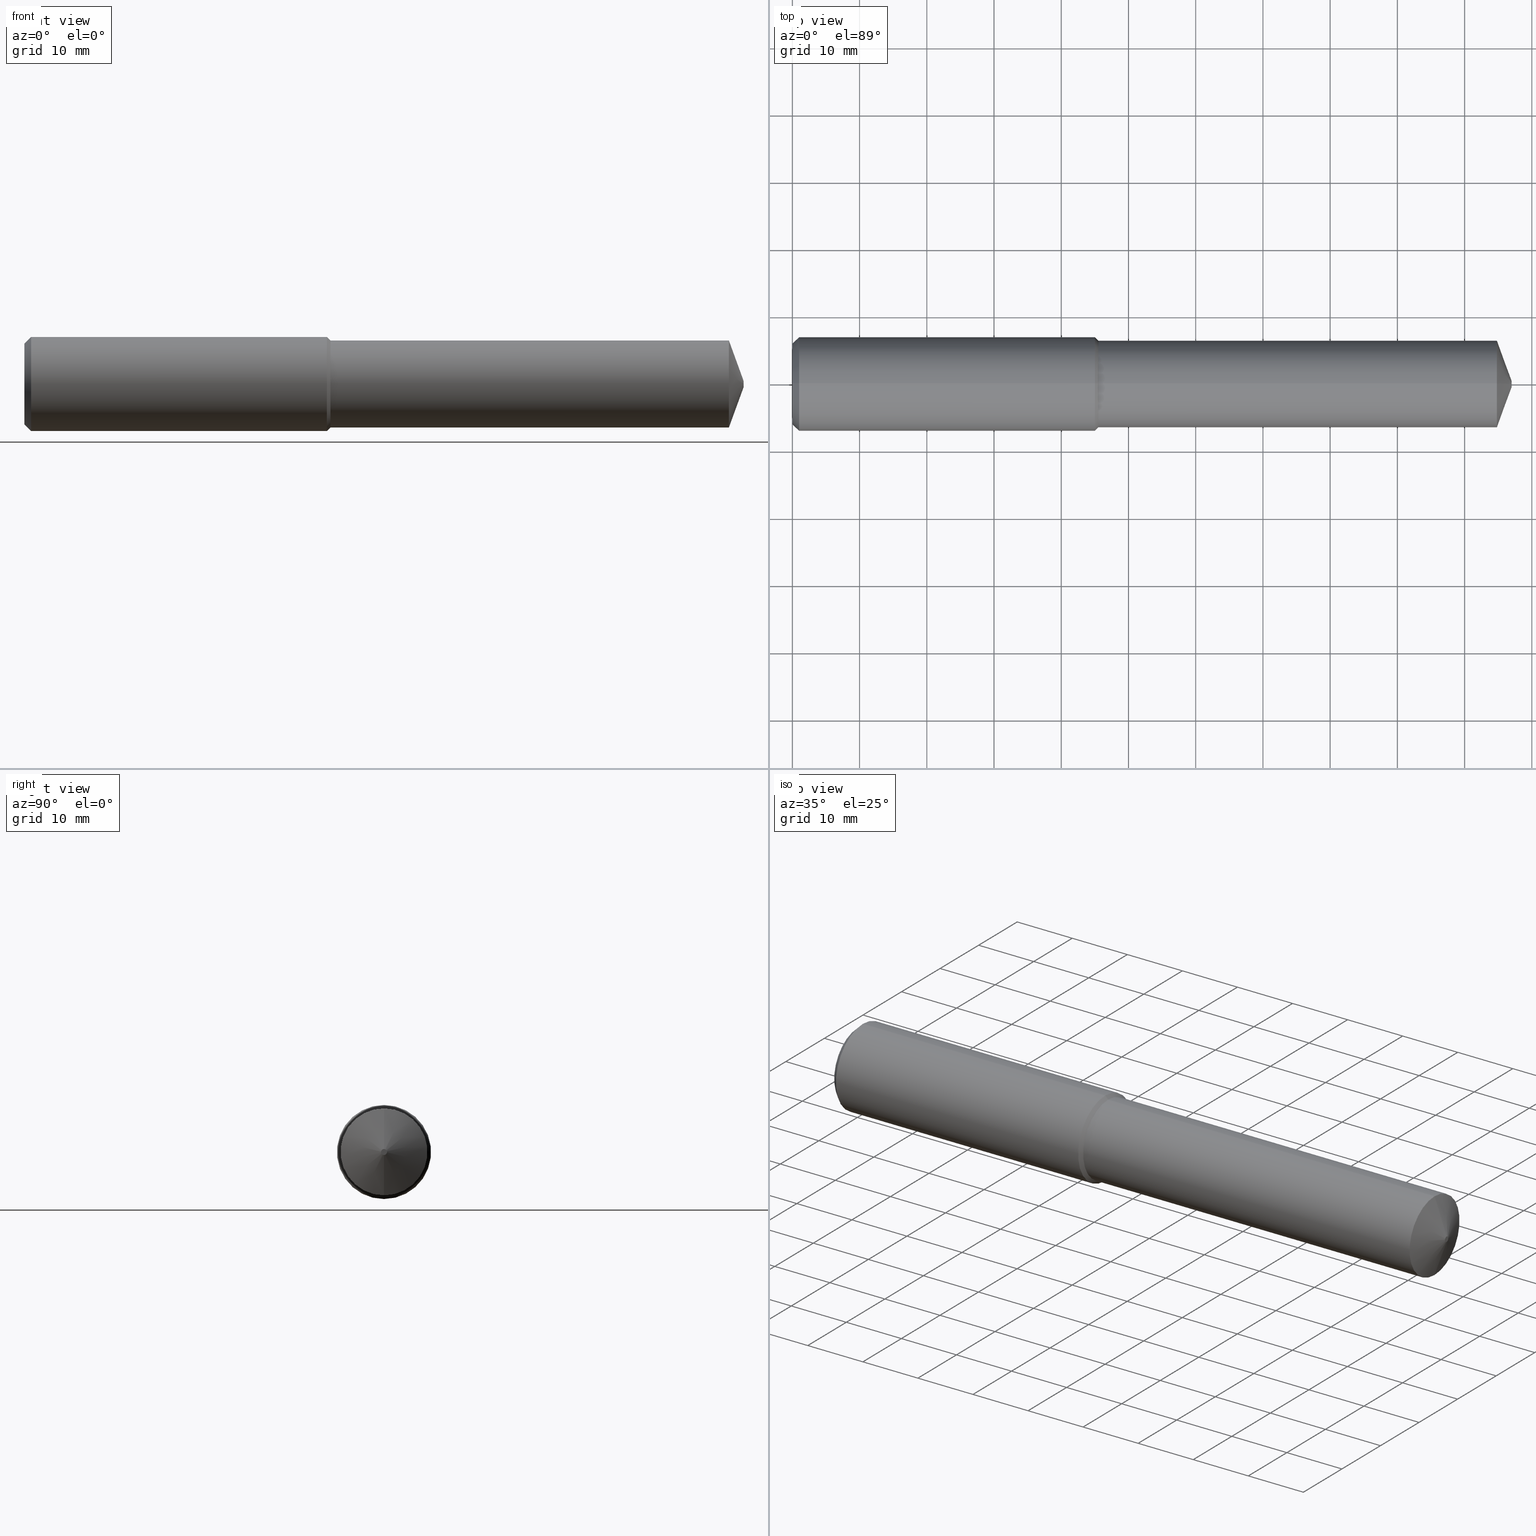
[diagram: canonical four-view strip — front | top / right | iso, engineering-drawing reading convention]
A machine part, canonical four-view strip (front | top / right | iso — engineering-drawing reading convention). The complete STEP part file that produces these views, byte-faithful:
ISO-10303-21;
HEADER;
FILE_DESCRIPTION (( 'STEP AP203' ),
    '1' );
FILE_NAME ('407008-DFX3-509A.STEP',
    '2024-10-02T21:42:54',
    ( '' ),
    ( '' ),
    'SwSTEP 2.0',
    'SolidWorks 2024',
    '' );
FILE_SCHEMA (( 'CONFIG_CONTROL_DESIGN' ));
ENDSEC;

DATA;
#1 = CARTESIAN_POINT ( 'NONE',  ( 4.126337479675760811, 0.000000000000000000, 0.000000000000000000 ) ) ;
#2 = DIRECTION ( 'NONE',  ( 0.000000000000000000, 0.000000000000000000, 1.000000000000000000 ) ) ;
#3 = AXIS2_PLACEMENT_3D ( 'NONE', #293, #116, #31 ) ;
#4 = AXIS2_PLACEMENT_3D ( 'NONE', #186, #93, #98 ) ;
#5 = DATE_AND_TIME ( #144, #322 ) ;
#6 = DIRECTION ( 'NONE',  ( 0.000000000000000000, 0.000000000000000000, -1.000000000000000000 ) ) ;
#7 = EDGE_CURVE ( 'NONE', #47, #162, #38, .T. ) ;
#8 = LINE ( 'NONE', #184, #338 ) ;
#9 = DIRECTION ( 'NONE',  ( 0.000000000000000000, 0.000000000000000000, -1.000000000000000000 ) ) ;
#10 = CC_DESIGN_APPROVAL ( #58, ( #148 ) ) ;
#11 = FACE_OUTER_BOUND ( 'NONE', #57, .T. ) ;
#12 = CARTESIAN_POINT ( 'NONE',  ( 4.212598425196850016, 0.000000000000000000, 0.01750000000000052208 ) ) ;
#13 = DIRECTION ( 'NONE',  ( 0.000000000000000000, 0.000000000000000000, 1.000000000000000000 ) ) ;
#14 = APPROVAL_DATE_TIME ( #218, #58 ) ;
#15 = AXIS2_PLACEMENT_3D ( 'NONE', #239, #288, #2 ) ;
#16 = ORIENTED_EDGE ( 'NONE', *, *, #73, .F. ) ;
#17 = EDGE_CURVE ( 'NONE', #131, #282, #147, .T. ) ;
#18 =( LENGTH_UNIT ( ) NAMED_UNIT ( * ) SI_UNIT ( $, .METRE. ) );
#19 = ORIENTED_EDGE ( 'NONE', *, *, #87, .T. ) ;
#20 = CARTESIAN_POINT ( 'NONE',  ( 1.771653543307086576, 3.375010863791921456E-17, -0.2755905511811025943 ) ) ;
#21 = EDGE_LOOP ( 'NONE', ( #28, #107, #77, #226 ) ) ;
#22 = CC_DESIGN_PERSON_AND_ORGANIZATION_ASSIGNMENT ( #310, #347, ( #103 ) ) ;
#23 = DIRECTION ( 'NONE',  ( 0.000000000000000000, 0.000000000000000000, 1.000000000000000000 ) ) ;
#24 = ORIENTED_EDGE ( 'NONE', *, *, #263, .T. ) ;
#25 = VECTOR ( 'NONE', #205, 39.37007874015748143 ) ;
#26 = ORIENTED_EDGE ( 'NONE', *, *, #321, .T. ) ;
#27 = COORDINATED_UNIVERSAL_TIME_OFFSET ( 8, 0, .BEHIND. ) ;
#28 = ORIENTED_EDGE ( 'NONE', *, *, #286, .F. ) ;
#29 = ADVANCED_FACE ( 'NONE', ( #86 ), #249, .T. ) ;
#30 = CARTESIAN_POINT ( 'NONE',  ( 1.771653543307086576, 0.000000000000000000, 0.000000000000000000 ) ) ;
#31 = DIRECTION ( 'NONE',  ( 0.000000000000000000, 0.000000000000000000, -1.000000000000000000 ) ) ;
#32 = FACE_OUTER_BOUND ( 'NONE', #74, .T. ) ;
#33 = FACE_OUTER_BOUND ( 'NONE', #191, .T. ) ;
#34 = CIRCLE ( 'NONE', #96, 0.01750000000000052208 ) ;
#35 = CARTESIAN_POINT ( 'NONE',  ( 1.792744094488189166, 0.000000000000000000, 0.2545000000000002260 ) ) ;
#36 = DIRECTION ( 'NONE',  ( -0.000000000000000000, 0.000000000000000000, -1.000000000000000000 ) ) ;
#37 = DIRECTION ( 'NONE',  ( 0.000000000000000000, 0.000000000000000000, -1.000000000000000000 ) ) ;
#38 = CIRCLE ( 'NONE', #167, 0.2362204724409449341 ) ;
#39 = CIRCLE ( 'NONE', #92, 0.2545000000000002260 ) ;
#40 = PLANE ( 'NONE',  #354 ) ;
#41 = EDGE_CURVE ( 'NONE', #162, #47, #267, .T. ) ;
#42 = CARTESIAN_POINT ( 'NONE',  ( 1.792744094488189166, 0.000000000000000000, 0.000000000000000000 ) ) ;
#43 = ADVANCED_FACE ( 'NONE', ( #121 ), #80, .T. ) ;
#44 = MECHANICAL_CONTEXT ( 'NONE', #213, 'mechanical' ) ;
#45 = PERSON_AND_ORGANIZATION_ROLE ( 'creator' ) ;
#46 = ORIENTED_EDGE ( 'NONE', *, *, #108, .F. ) ;
#47 = VERTEX_POINT ( 'NONE', #118 ) ;
#48 = ORIENTED_EDGE ( 'NONE', *, *, #272, .F. ) ;
#49 = ORIENTED_EDGE ( 'NONE', *, *, #232, .F. ) ;
#50 = DIMENSIONAL_EXPONENTS ( 1.000000000000000000, 0.000000000000000000, 0.000000000000000000, 0.000000000000000000, 0.000000000000000000, 0.000000000000000000, 0.000000000000000000 ) ;
#51 = ORIENTED_EDGE ( 'NONE', *, *, #83, .F. ) ;
#52 = CALENDAR_DATE ( 2024, 2, 10 ) ;
#53 = EDGE_CURVE ( 'NONE', #171, #370, #34, .T. ) ;
#54 = CARTESIAN_POINT ( 'NONE',  ( 4.212598425196850016, 0.000000000000000000, 0.000000000000000000 ) ) ;
#55 = CARTESIAN_POINT ( 'NONE',  ( 1.771653543307086576, 0.000000000000000000, 0.000000000000000000 ) ) ;
#56 = VECTOR ( 'NONE', #270, 39.37007874015748854 ) ;
#57 = EDGE_LOOP ( 'NONE', ( #70, #258, #142, #16 ) ) ;
#58 = APPROVAL ( #339, 'UNSPECIFIED' ) ;
#59 = DIRECTION ( 'NONE',  ( 0.000000000000000000, 0.000000000000000000, -1.000000000000000000 ) ) ;
#60 = CARTESIAN_POINT ( 'NONE',  ( -0.03808593750000075634, 3.375010863791919607E-17, 0.2755905511811024833 ) ) ;
#61 = AXIS2_PLACEMENT_3D ( 'NONE', #243, #65, #63 ) ;
#62 = CC_DESIGN_PERSON_AND_ORGANIZATION_ASSIGNMENT ( #120, #343, ( #160 ) ) ;
#63 = DIRECTION ( 'NONE',  ( 0.000000000000000000, 0.000000000000000000, -1.000000000000000000 ) ) ;
#64 = ADVANCED_FACE ( 'NONE', ( #140 ), #364, .T. ) ;
#65 = DIRECTION ( 'NONE',  ( 1.000000000000000000, -0.000000000000000000, -0.000000000000000000 ) ) ;
#66 = CC_DESIGN_APPROVAL ( #194, ( #160 ) ) ;
#67 = DIRECTION ( 'NONE',  ( -0.3420201433256675472, 1.150791560227850763E-16, -0.9396926207859088720 ) ) ;
#68 = PERSON_AND_ORGANIZATION ( #208, #377 ) ;
#69 = CALENDAR_DATE ( 2024, 2, 10 ) ;
#70 = ORIENTED_EDGE ( 'NONE', *, *, #132, .F. ) ;
#71 = AXIS2_PLACEMENT_3D ( 'NONE', #145, #320, #6 ) ;
#72 = APPROVAL_DATE_TIME ( #336, #143 ) ;
#73 = EDGE_CURVE ( 'NONE', #99, #134, #150, .T. ) ;
#74 = EDGE_LOOP ( 'NONE', ( #373, #253, #24, #46 ) ) ;
#75 = EDGE_LOOP ( 'NONE', ( #311, #102, #335, #137 ) ) ;
#76 = COORDINATED_UNIVERSAL_TIME_OFFSET ( 8, 0, .BEHIND. ) ;
#77 = ORIENTED_EDGE ( 'NONE', *, *, #250, .T. ) ;
#78 = PRODUCT_RELATED_PRODUCT_CATEGORY ( 'detail', '', ( #261 ) ) ;
#79 = SHAPE_DEFINITION_REPRESENTATION ( #172, #181 ) ;
#80 = CONICAL_SURFACE ( 'NONE', #296, 0.2755905511811023723, 0.7853981633974479459 ) ;
#81 = ORIENTED_EDGE ( 'NONE', *, *, #7, .F. ) ;
#82 = CIRCLE ( 'NONE', #359, 0.2545000000000002260 ) ;
#83 = EDGE_CURVE ( 'NONE', #134, #99, #332, .T. ) ;
#84 = DIRECTION ( 'NONE',  ( 1.000000000000000000, -0.000000000000000000, -0.000000000000000000 ) ) ;
#85 = FACE_OUTER_BOUND ( 'NONE', #259, .T. ) ;
#86 = FACE_OUTER_BOUND ( 'NONE', #21, .T. ) ;
#87 = EDGE_CURVE ( 'NONE', #131, #200, #112, .T. ) ;
#88 = AXIS2_PLACEMENT_3D ( 'NONE', #1, #115, #233 ) ;
#89 = CARTESIAN_POINT ( 'NONE',  ( 4.268512490100411279E-18, 0.000000000000000000, 0.000000000000000000 ) ) ;
#90 = CARTESIAN_POINT ( 'NONE',  ( 4.126337479675760811, 0.000000000000000000, 0.2545000000000006146 ) ) ;
#91 = LINE ( 'NONE', #331, #141 ) ;
#92 = AXIS2_PLACEMENT_3D ( 'NONE', #42, #124, #37 ) ;
#93 = DIRECTION ( 'NONE',  ( -1.000000000000000000, 0.000000000000000000, 0.000000000000000000 ) ) ;
#94 = CARTESIAN_POINT ( 'NONE',  ( 0.03937007874015747977, 0.000000000000000000, -0.2755905511811023723 ) ) ;
#95 = CARTESIAN_POINT ( 'NONE',  ( 4.268512490100411279E-18, 0.000000000000000000, -0.2362204724409449341 ) ) ;
#96 = AXIS2_PLACEMENT_3D ( 'NONE', #376, #206, #323 ) ;
#97 = CIRCLE ( 'NONE', #125, 0.01750000000000052208 ) ;
#98 = DIRECTION ( 'NONE',  ( 0.000000000000000000, 0.000000000000000000, 1.000000000000000000 ) ) ;
#99 = VERTEX_POINT ( 'NONE', #90 ) ;
#100 = ADVANCED_FACE ( 'NONE', ( #32 ), #266, .T. ) ;
#101 = APPROVAL_ROLE ( '' ) ;
#102 = ORIENTED_EDGE ( 'NONE', *, *, #286, .T. ) ;
#103 = PRODUCT_DEFINITION_FORMATION_WITH_SPECIFIED_SOURCE ( 'ANY', '', #261, .NOT_KNOWN. ) ;
#104 = CARTESIAN_POINT ( 'NONE',  ( 0.000000000000000000, 0.000000000000000000, 0.000000000000000000 ) ) ;
#105 = EDGE_LOOP ( 'NONE', ( #196, #139, #342, #255 ) ) ;
#106 = DIRECTION ( 'NONE',  ( 0.000000000000000000, 0.000000000000000000, 1.000000000000000000 ) ) ;
#107 = ORIENTED_EDGE ( 'NONE', *, *, #7, .T. ) ;
#108 = EDGE_CURVE ( 'NONE', #200, #371, #204, .T. ) ;
#109 = APPROVAL_ROLE ( '' ) ;
#110 = ORIENTED_EDGE ( 'NONE', *, *, #356, .T. ) ;
#111 = ADVANCED_FACE ( 'NONE', ( #85 ), #297, .T. ) ;
#112 = LINE ( 'NONE', #60, #25 ) ;
#113 = AXIS2_PLACEMENT_3D ( 'NONE', #104, #106, #306 ) ;
#114 = DATE_TIME_ROLE ( 'classification_date' ) ;
#115 = DIRECTION ( 'NONE',  ( 1.000000000000000000, -0.000000000000000000, -0.000000000000000000 ) ) ;
#116 = DIRECTION ( 'NONE',  ( 1.000000000000000000, -0.000000000000000000, -0.000000000000000000 ) ) ;
#117 = APPROVAL_PERSON_ORGANIZATION ( #252, #143, #109 ) ;
#118 = CARTESIAN_POINT ( 'NONE',  ( 4.268512490100411279E-18, 3.133938659235352953E-17, 0.2362204724409449341 ) ) ;
#119 = CIRCLE ( 'NONE', #251, 0.2755905511811025943 ) ;
#120 = PERSON_AND_ORGANIZATION ( #208, #377 ) ;
#121 = FACE_OUTER_BOUND ( 'NONE', #75, .T. ) ;
#122 = DIRECTION ( 'NONE',  ( 1.000000000000000000, -0.000000000000000000, -0.000000000000000000 ) ) ;
#123 = EDGE_CURVE ( 'NONE', #371, #200, #119, .T. ) ;
#124 = DIRECTION ( 'NONE',  ( 1.000000000000000000, -0.000000000000000000, -0.000000000000000000 ) ) ;
#125 = AXIS2_PLACEMENT_3D ( 'NONE', #212, #246, #128 ) ;
#126 = PLANE ( 'NONE',  #4 ) ;
#127 = FACE_OUTER_BOUND ( 'NONE', #219, .T. ) ;
#128 = DIRECTION ( 'NONE',  ( 0.000000000000000000, 0.000000000000000000, -1.000000000000000000 ) ) ;
#129 = VECTOR ( 'NONE', #84, 39.37007874015748143 ) ;
#130 = ADVANCED_FACE ( 'NONE', ( #33 ), #262, .T. ) ;
#131 = VERTEX_POINT ( 'NONE', #348 ) ;
#132 = EDGE_CURVE ( 'NONE', #228, #99, #357, .T. ) ;
#133 = LENGTH_MEASURE_WITH_UNIT ( LENGTH_MEASURE( 0.02539999999999999897 ), #18 );
#134 = VERTEX_POINT ( 'NONE', #273 ) ;
#135 = AXIS2_PLACEMENT_3D ( 'NONE', #360, #303, #9 ) ;
#136 = DIRECTION ( 'NONE',  ( -0.7071067811865521247, 8.659560562354876159E-17, -0.7071067811865429098 ) ) ;
#137 = ORIENTED_EDGE ( 'NONE', *, *, #250, .F. ) ;
#138 = APPROVAL_STATUS ( 'not_yet_approved' ) ;
#139 = ORIENTED_EDGE ( 'NONE', *, *, #53, .F. ) ;
#140 = FACE_OUTER_BOUND ( 'NONE', #105, .T. ) ;
#141 = VECTOR ( 'NONE', #67, 39.37007874015748854 ) ;
#142 = ORIENTED_EDGE ( 'NONE', *, *, #361, .T. ) ;
#143 = APPROVAL ( #138, 'UNSPECIFIED' ) ;
#144 = CALENDAR_DATE ( 2024, 2, 10 ) ;
#145 = CARTESIAN_POINT ( 'NONE',  ( -0.03808593750000075634, 0.000000000000000000, 0.000000000000000000 ) ) ;
#146 = DIRECTION ( 'NONE',  ( 0.000000000000000000, 0.000000000000000000, -1.000000000000000000 ) ) ;
#147 = CIRCLE ( 'NONE', #3, 0.2755905511811023723 ) ;
#148 = PRODUCT_DEFINITION ( 'UNKNOWN', '', #103, #198 ) ;
#149 = DIRECTION ( 'NONE',  ( 1.000000000000000000, -0.000000000000000000, -0.000000000000000000 ) ) ;
#150 = CIRCLE ( 'NONE', #156, 0.2545000000000005036 ) ;
#151 = VECTOR ( 'NONE', #153, 39.37007874015748143 ) ;
#152 = CARTESIAN_POINT ( 'NONE',  ( 4.212598425196850016, 0.000000000000000000, 0.01750000000000052208 ) ) ;
#153 = DIRECTION ( 'NONE',  ( 1.000000000000000000, -0.000000000000000000, -0.000000000000000000 ) ) ;
#154 = MANIFOLD_SOLID_BREP ( 'Body', #229 ) ;
#155 = CARTESIAN_POINT ( 'NONE',  ( 4.212598425196850016, 0.000000000000000000, 0.000000000000000000 ) ) ;
#156 = AXIS2_PLACEMENT_3D ( 'NONE', #319, #235, #324 ) ;
#157 = CC_DESIGN_PERSON_AND_ORGANIZATION_ASSIGNMENT ( #307, #45, ( #103 ) ) ;
#158 = DIRECTION ( 'NONE',  ( -1.000000000000000000, 0.000000000000000000, 0.000000000000000000 ) ) ;
#159 = COORDINATED_UNIVERSAL_TIME_OFFSET ( 8, 0, .BEHIND. ) ;
#160 = SECURITY_CLASSIFICATION ( '', '', #268 ) ;
#161 = CARTESIAN_POINT ( 'NONE',  ( 4.212598425196850016, 0.000000000000000000, 0.000000000000000000 ) ) ;
#162 = VERTEX_POINT ( 'NONE', #95 ) ;
#163 = ADVANCED_FACE ( 'NONE', ( #327 ), #126, .T. ) ;
#164 = PERSON_AND_ORGANIZATION_ROLE ( 'design_owner' ) ;
#165 = ORIENTED_EDGE ( 'NONE', *, *, #263, .F. ) ;
#166 = EDGE_LOOP ( 'NONE', ( #287, #337, #51, #318 ) ) ;
#167 = AXIS2_PLACEMENT_3D ( 'NONE', #89, #352, #378 ) ;
#168 = AXIS2_PLACEMENT_3D ( 'NONE', #55, #231, #59 ) ;
#169 = DATE_TIME_ROLE ( 'creation_date' ) ;
#170 = EDGE_LOOP ( 'NONE', ( #374, #26, #224, #188 ) ) ;
#171 = VERTEX_POINT ( 'NONE', #12 ) ;
#172 = PRODUCT_DEFINITION_SHAPE ( 'NONE', 'NONE',  #148 ) ;
#173 = APPROVAL_STATUS ( 'not_yet_approved' ) ;
#174 = CARTESIAN_POINT ( 'NONE',  ( -0.03808593750000075634, 0.000000000000000000, 0.000000000000000000 ) ) ;
#175 = CIRCLE ( 'NONE', #61, 0.2755905511811023723 ) ;
#176 = DIRECTION ( 'NONE',  ( 0.000000000000000000, 0.000000000000000000, -1.000000000000000000 ) ) ;
#177 = DIRECTION ( 'NONE',  ( 0.000000000000000000, 0.000000000000000000, 1.000000000000000000 ) ) ;
#178 = DIRECTION ( 'NONE',  ( 0.000000000000000000, 0.000000000000000000, -1.000000000000000000 ) ) ;
#179 = CARTESIAN_POINT ( 'NONE',  ( 0.03937007874015747977, 0.000000000000000000, -0.2755905511811023723 ) ) ;
#180 = LINE ( 'NONE', #279, #185 ) ;
#181 = ADVANCED_BREP_SHAPE_REPRESENTATION ( '407008-DFX3-509A', ( #154, #113 ), #326 ) ;
#182 = CARTESIAN_POINT ( 'NONE',  ( -0.03808593750000075634, 0.000000000000000000, -0.2755905511811024833 ) ) ;
#183 = ADVANCED_FACE ( 'NONE', ( #11 ), #248, .T. ) ;
#184 = CARTESIAN_POINT ( 'NONE',  ( 0.03937007874015747977, 3.375010863791918375E-17, 0.2755905511811023723 ) ) ;
#185 = VECTOR ( 'NONE', #136, 39.37007874015748143 ) ;
#186 = CARTESIAN_POINT ( 'NONE',  ( 1.186075246418301222E-18, 0.2362204724409449341, 0.000000000000000000 ) ) ;
#187 = CARTESIAN_POINT ( 'NONE',  ( 4.212598425196850016, 1.665519646840406535E-17, -0.01750000000000052208 ) ) ;
#188 = ORIENTED_EDGE ( 'NONE', *, *, #276, .F. ) ;
#189 = VECTOR ( 'NONE', #277, 39.37007874015748143 ) ;
#190 = CARTESIAN_POINT ( 'NONE',  ( -0.03808593750000075634, 0.000000000000000000, -0.2545000000000003926 ) ) ;
#191 = EDGE_LOOP ( 'NONE', ( #313, #19, #340, #165 ) ) ;
#192 = FACE_OUTER_BOUND ( 'NONE', #170, .T. ) ;
#193 = ORIENTED_EDGE ( 'NONE', *, *, #356, .F. ) ;
#194 = APPROVAL ( #173, 'UNSPECIFIED' ) ;
#195 = DATE_AND_TIME ( #284, #222 ) ;
#196 = ORIENTED_EDGE ( 'NONE', *, *, #321, .F. ) ;
#197 = AXIS2_PLACEMENT_3D ( 'NONE', #201, #149, #176 ) ;
#198 = DESIGN_CONTEXT ( 'detailed design', #292, 'design' ) ;
#199 = VECTOR ( 'NONE', #312, 39.37007874015748143 ) ;
#200 = VERTEX_POINT ( 'NONE', #299 ) ;
#201 = CARTESIAN_POINT ( 'NONE',  ( 0.03937007874015747977, 0.000000000000000000, 0.000000000000000000 ) ) ;
#202 = ADVANCED_FACE ( 'NONE', ( #127 ), #40, .T. ) ;
#203 = DIRECTION ( 'NONE',  ( 1.000000000000000000, -0.000000000000000000, -0.000000000000000000 ) ) ;
#204 = CIRCLE ( 'NONE', #168, 0.2755905511811025943 ) ;
#205 = DIRECTION ( 'NONE',  ( 1.000000000000000000, -0.000000000000000000, -0.000000000000000000 ) ) ;
#206 = DIRECTION ( 'NONE',  ( 1.000000000000000000, -0.000000000000000000, -0.000000000000000000 ) ) ;
#207 = DIRECTION ( 'NONE',  ( 0.000000000000000000, 0.000000000000000000, -1.000000000000000000 ) ) ;
#208 = PERSON ( 'UNSPECIFIED', 'UNSPECIFIED', 'UNSPECIFIED', ('UNSPECIFIED'), ('UNSPECIFIED'), ('UNSPECIFIED') ) ;
#209 = CARTESIAN_POINT ( 'NONE',  ( 1.792744094488189166, 0.000000000000000000, 0.000000000000000000 ) ) ;
#210 = CONICAL_SURFACE ( 'NONE', #274, 0.2545000000000002260, 0.7853981633974418397 ) ;
#211 = CC_DESIGN_PERSON_AND_ORGANIZATION_ASSIGNMENT ( #369, #164, ( #261 ) ) ;
#212 = CARTESIAN_POINT ( 'NONE',  ( 4.212598425196850016, 0.000000000000000000, 0.000000000000000000 ) ) ;
#213 = APPLICATION_CONTEXT ( 'configuration controlled 3d designs of mechanical parts and assemblies' ) ;
#214 = LINE ( 'NONE', #152, #56 ) ;
#215 = CARTESIAN_POINT ( 'NONE',  ( -0.03808593750000075634, 0.000000000000000000, 0.000000000000000000 ) ) ;
#216 = DIRECTION ( 'NONE',  ( 1.000000000000000000, -0.000000000000000000, -0.000000000000000000 ) ) ;
#217 = EDGE_CURVE ( 'NONE', #370, #171, #97, .T. ) ;
#218 = DATE_AND_TIME ( #225, #289 ) ;
#219 = EDGE_LOOP ( 'NONE', ( #308, #344 ) ) ;
#220 = PERSON_AND_ORGANIZATION ( #208, #377 ) ;
#221 = VERTEX_POINT ( 'NONE', #365 ) ;
#222 = LOCAL_TIME ( 14, 42, 54.00000000000000000, #76 ) ;
#223 = APPLICATION_PROTOCOL_DEFINITION ( 'international standard', 'config_control_design', 1994, #292 ) ;
#224 = ORIENTED_EDGE ( 'NONE', *, *, #83, .T. ) ;
#225 = CALENDAR_DATE ( 2024, 2, 10 ) ;
#226 = ORIENTED_EDGE ( 'NONE', *, *, #17, .F. ) ;
#227 = LINE ( 'NONE', #190, #199 ) ;
#228 = VERTEX_POINT ( 'NONE', #329 ) ;
#229 = CLOSED_SHELL ( 'NONE', ( #43, #130, #111, #317, #366, #163, #202, #64, #183, #349, #100, #29 ) ) ;
#230 = CC_DESIGN_DATE_AND_TIME_ASSIGNMENT ( #236, #114, ( #160 ) ) ;
#231 = DIRECTION ( 'NONE',  ( 1.000000000000000000, -0.000000000000000000, -0.000000000000000000 ) ) ;
#232 = EDGE_CURVE ( 'NONE', #221, #228, #82, .T. ) ;
#233 = DIRECTION ( 'NONE',  ( 0.000000000000000000, 0.000000000000000000, -1.000000000000000000 ) ) ;
#234 = APPROVAL_DATE_TIME ( #5, #194 ) ;
#235 = DIRECTION ( 'NONE',  ( 1.000000000000000000, -0.000000000000000000, -0.000000000000000000 ) ) ;
#236 = DATE_AND_TIME ( #52, #330 ) ;
#237 = AXIS2_PLACEMENT_3D ( 'NONE', #161, #278, #23 ) ;
#238 = CARTESIAN_POINT ( 'NONE',  ( 4.268512490100411279E-18, 0.000000000000000000, 0.000000000000000000 ) ) ;
#239 = CARTESIAN_POINT ( 'NONE',  ( 1.792744094488189166, 0.000000000000000000, 0.000000000000000000 ) ) ;
#240 = DIRECTION ( 'NONE',  ( 0.000000000000000000, 0.000000000000000000, -1.000000000000000000 ) ) ;
#241 = CC_DESIGN_DATE_AND_TIME_ASSIGNMENT ( #195, #169, ( #148 ) ) ;
#242 = LOCAL_TIME ( 14, 42, 54.00000000000000000, #334 ) ;
#243 = CARTESIAN_POINT ( 'NONE',  ( 0.03937007874015747977, 0.000000000000000000, 0.000000000000000000 ) ) ;
#244 = AXIS2_PLACEMENT_3D ( 'NONE', #215, #122, #240 ) ;
#245 = CC_DESIGN_APPROVAL ( #143, ( #103 ) ) ;
#246 = DIRECTION ( 'NONE',  ( 1.000000000000000000, -0.000000000000000000, -0.000000000000000000 ) ) ;
#247 = FACE_OUTER_BOUND ( 'NONE', #166, .T. ) ;
#248 = CYLINDRICAL_SURFACE ( 'NONE', #135, 0.2545000000000003926 ) ;
#249 = CONICAL_SURFACE ( 'NONE', #197, 0.2755905511811023723, 0.7853981633974479459 ) ;
#250 = EDGE_CURVE ( 'NONE', #162, #282, #275, .T. ) ;
#251 = AXIS2_PLACEMENT_3D ( 'NONE', #30, #355, #178 ) ;
#252 = PERSON_AND_ORGANIZATION ( #208, #377 ) ;
#253 = ORIENTED_EDGE ( 'NONE', *, *, #17, .T. ) ;
#254 = APPLICATION_PROTOCOL_DEFINITION ( 'international standard', 'config_control_design', 1994, #213 ) ;
#255 = ORIENTED_EDGE ( 'NONE', *, *, #73, .T. ) ;
#256 = UNCERTAINTY_MEASURE_WITH_UNIT (LENGTH_MEASURE( 1.000000000000000082E-05 ), #257, 'distance_accuracy_value', 'NONE');
#257 =( CONVERSION_BASED_UNIT ( 'INCH', #133 ) LENGTH_UNIT ( ) NAMED_UNIT ( #50 ) );
#258 = ORIENTED_EDGE ( 'NONE', *, *, #281, .T. ) ;
#259 = EDGE_LOOP ( 'NONE', ( #49, #110, #264, #48 ) ) ;
#260 = ORIENTED_EDGE ( 'NONE', *, *, #281, .F. ) ;
#261 = PRODUCT ( '407008-DFX3-509A', '407008-DFX3-509A', '', ( #44 ) ) ;
#262 = CYLINDRICAL_SURFACE ( 'NONE', #71, 0.2755905511811024833 ) ;
#263 = EDGE_CURVE ( 'NONE', #282, #371, #358, .T. ) ;
#264 = ORIENTED_EDGE ( 'NONE', *, *, #123, .T. ) ;
#265 = DIRECTION ( 'NONE',  ( -1.000000000000000000, 0.000000000000000000, 0.000000000000000000 ) ) ;
#266 = CYLINDRICAL_SURFACE ( 'NONE', #304, 0.2755905511811024833 ) ;
#267 = CIRCLE ( 'NONE', #345, 0.2362204724409449341 ) ;
#268 = SECURITY_CLASSIFICATION_LEVEL ( 'unclassified' ) ;
#269 = DIRECTION ( 'NONE',  ( 1.000000000000000000, -0.000000000000000000, -0.000000000000000000 ) ) ;
#270 = DIRECTION ( 'NONE',  ( -0.3420201433256675472, 0.000000000000000000, 0.9396926207859088720 ) ) ;
#271 = DIRECTION ( 'NONE',  ( 1.000000000000000000, 0.000000000000000000, -0.000000000000000000 ) ) ;
#272 = EDGE_CURVE ( 'NONE', #228, #200, #362, .T. ) ;
#273 = CARTESIAN_POINT ( 'NONE',  ( 4.126337479675760811, 3.116726103830021186E-17, -0.2545000000000006146 ) ) ;
#274 = AXIS2_PLACEMENT_3D ( 'NONE', #209, #158, #13 ) ;
#275 = LINE ( 'NONE', #179, #316 ) ;
#276 = EDGE_CURVE ( 'NONE', #171, #99, #214, .T. ) ;
#277 = DIRECTION ( 'NONE',  ( -0.7071067811865521247, 0.000000000000000000, 0.7071067811865429098 ) ) ;
#278 = DIRECTION ( 'NONE',  ( -1.000000000000000000, 0.000000000000000000, 0.000000000000000000 ) ) ;
#279 = CARTESIAN_POINT ( 'NONE',  ( 1.792744094488189166, 3.116726103830016872E-17, -0.2545000000000002260 ) ) ;
#280 = EDGE_LOOP ( 'NONE', ( #285, #81 ) ) ;
#281 = EDGE_CURVE ( 'NONE', #228, #221, #39, .T. ) ;
#282 = VERTEX_POINT ( 'NONE', #94 ) ;
#283 = EDGE_LOOP ( 'NONE', ( #193, #260, #368, #315 ) ) ;
#284 = CALENDAR_DATE ( 2024, 2, 10 ) ;
#285 = ORIENTED_EDGE ( 'NONE', *, *, #41, .F. ) ;
#286 = EDGE_CURVE ( 'NONE', #47, #131, #8, .T. ) ;
#287 = ORIENTED_EDGE ( 'NONE', *, *, #232, .T. ) ;
#288 = DIRECTION ( 'NONE',  ( -1.000000000000000000, 0.000000000000000000, 0.000000000000000000 ) ) ;
#289 = LOCAL_TIME ( 14, 42, 54.00000000000000000, #159 ) ;
#290 = DIRECTION ( 'NONE',  ( 0.000000000000000000, 0.000000000000000000, -1.000000000000000000 ) ) ;
#291 = CC_DESIGN_PERSON_AND_ORGANIZATION_ASSIGNMENT ( #220, #341, ( #148 ) ) ;
#292 = APPLICATION_CONTEXT ( 'configuration controlled 3d designs of mechanical parts and assemblies' ) ;
#293 = CARTESIAN_POINT ( 'NONE',  ( 0.03937007874015747977, 0.000000000000000000, 0.000000000000000000 ) ) ;
#294 = PERSON_AND_ORGANIZATION ( #208, #377 ) ;
#295 = CARTESIAN_POINT ( 'NONE',  ( 0.03937007874015747977, 0.000000000000000000, 0.000000000000000000 ) ) ;
#296 = AXIS2_PLACEMENT_3D ( 'NONE', #295, #203, #207 ) ;
#297 = CONICAL_SURFACE ( 'NONE', #15, 0.2545000000000002260, 0.7853981633974418397 ) ;
#298 = EDGE_CURVE ( 'NONE', #282, #131, #175, .T. ) ;
#299 = CARTESIAN_POINT ( 'NONE',  ( 1.771653543307086576, 0.000000000000000000, 0.2755905511811025943 ) ) ;
#300 = DIRECTION ( 'NONE',  ( 0.7071067811865477948, 8.659560562354929160E-17, 0.7071067811865472397 ) ) ;
#301 = CYLINDRICAL_SURFACE ( 'NONE', #244, 0.2545000000000003926 ) ;
#302 = APPROVAL_PERSON_ORGANIZATION ( #294, #194, #351 ) ;
#303 = DIRECTION ( 'NONE',  ( 1.000000000000000000, -0.000000000000000000, -0.000000000000000000 ) ) ;
#304 = AXIS2_PLACEMENT_3D ( 'NONE', #174, #269, #290 ) ;
#305 = FACE_OUTER_BOUND ( 'NONE', #283, .T. ) ;
#306 = DIRECTION ( 'NONE',  ( 1.000000000000000000, 0.000000000000000000, 0.000000000000000000 ) ) ;
#307 = PERSON_AND_ORGANIZATION ( #208, #377 ) ;
#308 = ORIENTED_EDGE ( 'NONE', *, *, #53, .T. ) ;
#309 = APPROVAL_PERSON_ORGANIZATION ( #68, #58, #101 ) ;
#310 = PERSON_AND_ORGANIZATION ( #208, #377 ) ;
#311 = ORIENTED_EDGE ( 'NONE', *, *, #41, .T. ) ;
#312 = DIRECTION ( 'NONE',  ( 1.000000000000000000, -0.000000000000000000, -0.000000000000000000 ) ) ;
#313 = ORIENTED_EDGE ( 'NONE', *, *, #298, .T. ) ;
#314 =( NAMED_UNIT ( * ) PLANE_ANGLE_UNIT ( ) SI_UNIT ( $, .RADIAN. ) );
#315 = ORIENTED_EDGE ( 'NONE', *, *, #108, .T. ) ;
#316 = VECTOR ( 'NONE', #363, 39.37007874015748143 ) ;
#317 = ADVANCED_FACE ( 'NONE', ( #247 ), #301, .T. ) ;
#318 = ORIENTED_EDGE ( 'NONE', *, *, #361, .F. ) ;
#319 = CARTESIAN_POINT ( 'NONE',  ( 4.126337479675760811, 0.000000000000000000, 0.000000000000000000 ) ) ;
#320 = DIRECTION ( 'NONE',  ( 1.000000000000000000, -0.000000000000000000, -0.000000000000000000 ) ) ;
#321 = EDGE_CURVE ( 'NONE', #370, #134, #91, .T. ) ;
#322 = LOCAL_TIME ( 14, 42, 54.00000000000000000, #375 ) ;
#323 = DIRECTION ( 'NONE',  ( 0.000000000000000000, 0.000000000000000000, -1.000000000000000000 ) ) ;
#324 = DIRECTION ( 'NONE',  ( 0.000000000000000000, 0.000000000000000000, -1.000000000000000000 ) ) ;
#325 = CARTESIAN_POINT ( 'NONE',  ( -0.03808593750000075634, 3.116726103830018721E-17, 0.2545000000000003926 ) ) ;
#326 =( GEOMETRIC_REPRESENTATION_CONTEXT ( 3 ) GLOBAL_UNCERTAINTY_ASSIGNED_CONTEXT ( ( #256 ) ) GLOBAL_UNIT_ASSIGNED_CONTEXT ( ( #257, #314, #367 ) ) REPRESENTATION_CONTEXT ( 'NONE', 'WORKASPACE' ) );
#327 = FACE_OUTER_BOUND ( 'NONE', #280, .T. ) ;
#328 = CARTESIAN_POINT ( 'NONE',  ( 1.792744094488189166, 0.000000000000000000, 0.000000000000000000 ) ) ;
#329 = CARTESIAN_POINT ( 'NONE',  ( 1.792744094488189166, 3.116726103830018104E-17, 0.2545000000000002260 ) ) ;
#330 = LOCAL_TIME ( 14, 42, 54.00000000000000000, #27 ) ;
#331 = CARTESIAN_POINT ( 'NONE',  ( 4.212598425196850016, 2.143131898507931930E-18, -0.01750000000000052208 ) ) ;
#332 = CIRCLE ( 'NONE', #88, 0.2545000000000005036 ) ;
#333 = DIRECTION ( 'NONE',  ( 0.000000000000000000, 0.000000000000000000, -1.000000000000000000 ) ) ;
#334 = COORDINATED_UNIVERSAL_TIME_OFFSET ( 8, 0, .BEHIND. ) ;
#335 = ORIENTED_EDGE ( 'NONE', *, *, #298, .F. ) ;
#336 = DATE_AND_TIME ( #69, #242 ) ;
#337 = ORIENTED_EDGE ( 'NONE', *, *, #132, .T. ) ;
#338 = VECTOR ( 'NONE', #300, 39.37007874015748143 ) ;
#339 = APPROVAL_STATUS ( 'not_yet_approved' ) ;
#340 = ORIENTED_EDGE ( 'NONE', *, *, #123, .F. ) ;
#341 = PERSON_AND_ORGANIZATION_ROLE ( 'creator' ) ;
#342 = ORIENTED_EDGE ( 'NONE', *, *, #276, .T. ) ;
#343 = PERSON_AND_ORGANIZATION_ROLE ( 'classification_officer' ) ;
#344 = ORIENTED_EDGE ( 'NONE', *, *, #217, .T. ) ;
#345 = AXIS2_PLACEMENT_3D ( 'NONE', #238, #350, #146 ) ;
#346 = CONICAL_SURFACE ( 'NONE', #237, 0.01750000000000052208, 1.221730476396031939 ) ;
#347 = PERSON_AND_ORGANIZATION_ROLE ( 'design_supplier' ) ;
#348 = CARTESIAN_POINT ( 'NONE',  ( 0.03937007874015747977, 3.375010863791918991E-17, 0.2755905511811023723 ) ) ;
#349 = ADVANCED_FACE ( 'NONE', ( #305 ), #210, .T. ) ;
#350 = DIRECTION ( 'NONE',  ( 1.000000000000000000, -0.000000000000000000, -0.000000000000000000 ) ) ;
#351 = APPROVAL_ROLE ( '' ) ;
#352 = DIRECTION ( 'NONE',  ( 1.000000000000000000, -0.000000000000000000, -0.000000000000000000 ) ) ;
#353 = CC_DESIGN_SECURITY_CLASSIFICATION ( #160, ( #103 ) ) ;
#354 = AXIS2_PLACEMENT_3D ( 'NONE', #155, #271, #36 ) ;
#355 = DIRECTION ( 'NONE',  ( 1.000000000000000000, -0.000000000000000000, -0.000000000000000000 ) ) ;
#356 = EDGE_CURVE ( 'NONE', #221, #371, #180, .T. ) ;
#357 = LINE ( 'NONE', #325, #129 ) ;
#358 = LINE ( 'NONE', #182, #151 ) ;
#359 = AXIS2_PLACEMENT_3D ( 'NONE', #328, #216, #333 ) ;
#360 = CARTESIAN_POINT ( 'NONE',  ( -0.03808593750000075634, 0.000000000000000000, 0.000000000000000000 ) ) ;
#361 = EDGE_CURVE ( 'NONE', #221, #134, #227, .T. ) ;
#362 = LINE ( 'NONE', #35, #189 ) ;
#363 = DIRECTION ( 'NONE',  ( 0.7071067811865477948, 0.000000000000000000, -0.7071067811865472397 ) ) ;
#364 = CONICAL_SURFACE ( 'NONE', #372, 0.01750000000000052208, 1.221730476396031939 ) ;
#365 = CARTESIAN_POINT ( 'NONE',  ( 1.792744094488189166, 0.000000000000000000, -0.2545000000000002260 ) ) ;
#366 = ADVANCED_FACE ( 'NONE', ( #192 ), #346, .T. ) ;
#367 =( NAMED_UNIT ( * ) SI_UNIT ( $, .STERADIAN. ) SOLID_ANGLE_UNIT ( ) );
#368 = ORIENTED_EDGE ( 'NONE', *, *, #272, .T. ) ;
#369 = PERSON_AND_ORGANIZATION ( #208, #377 ) ;
#370 = VERTEX_POINT ( 'NONE', #187 ) ;
#371 = VERTEX_POINT ( 'NONE', #20 ) ;
#372 = AXIS2_PLACEMENT_3D ( 'NONE', #54, #265, #177 ) ;
#373 = ORIENTED_EDGE ( 'NONE', *, *, #87, .F. ) ;
#374 = ORIENTED_EDGE ( 'NONE', *, *, #217, .F. ) ;
#375 = COORDINATED_UNIVERSAL_TIME_OFFSET ( 8, 0, .BEHIND. ) ;
#376 = CARTESIAN_POINT ( 'NONE',  ( 4.212598425196850016, 0.000000000000000000, 0.000000000000000000 ) ) ;
#377 = ORGANIZATION ( 'UNSPECIFIED', 'UNSPECIFIED', '' ) ;
#378 = DIRECTION ( 'NONE',  ( 0.000000000000000000, 0.000000000000000000, -1.000000000000000000 ) ) ;
ENDSEC;
END-ISO-10303-21;
